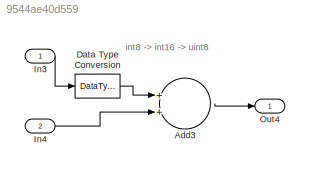
MODEL slx_9544ae40d559
KIND model
CONFIG AbsTol = auto
CONFIG EnableMultiTasking = off
CONFIG FixedStep = 0.200000
CONFIG MaxStep = auto
CONFIG MinStep = auto
CONFIG RelTol = 1e-3
CONFIG SampleTimeConstraint = Unconstrained
CONFIG Solver = FixedStepDiscrete
CONFIG SolverName = FixedStepDiscrete
CONFIG StartTime = 0.0
CONFIG StopTime = 10.0
BLOCK [Sum] Add3
  InputSameDT = off
  OutDataTypeStr = Inherit: Inherit via internal rule
  Ports = [2, 1]
  SaturateOnIntegerOverflow = off
BLOCK [DataTypeConversion] Data Type Conversion
  OutDataTypeStr = int16
  RndMeth = Floor
  SaturateOnIntegerOverflow = off
BLOCK [Inport] In3
  IconDisplay = Port number
  OutDataTypeStr = int8
BLOCK [Inport] In4
  IconDisplay = Port number
  OutDataTypeStr = int16
  Port = 2
BLOCK [Outport] Out4
  IconDisplay = Port number
ANNOTATION (root): int8 -> int16 -> uint8
LINE Add3:1 -> Out4:1
LINE Data Type Conversion:1 -> Add3:1
LINE In3:1 -> Data Type Conversion:1
LINE In4:1 -> Add3:2
